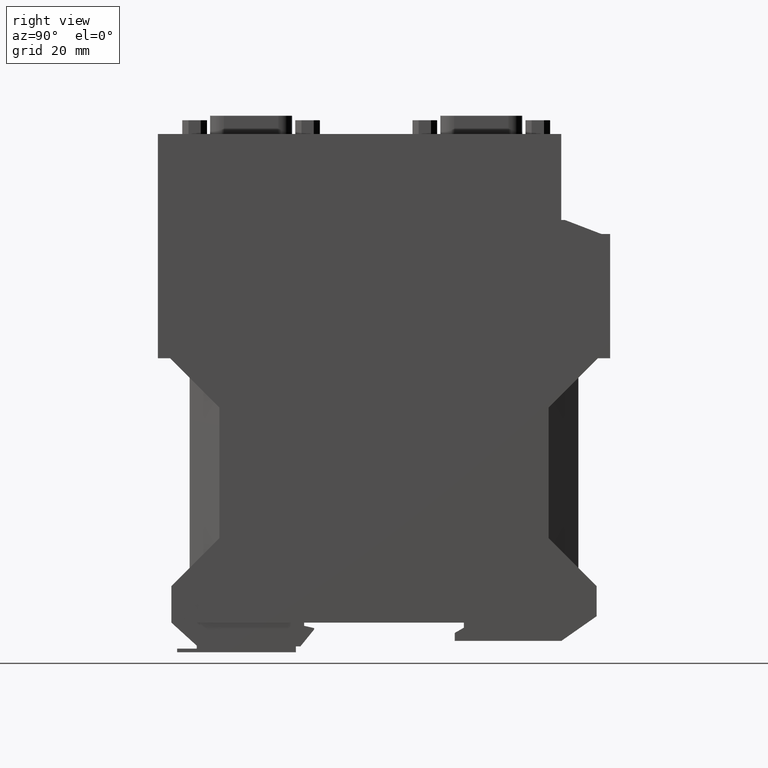
[diagram: clean part render]
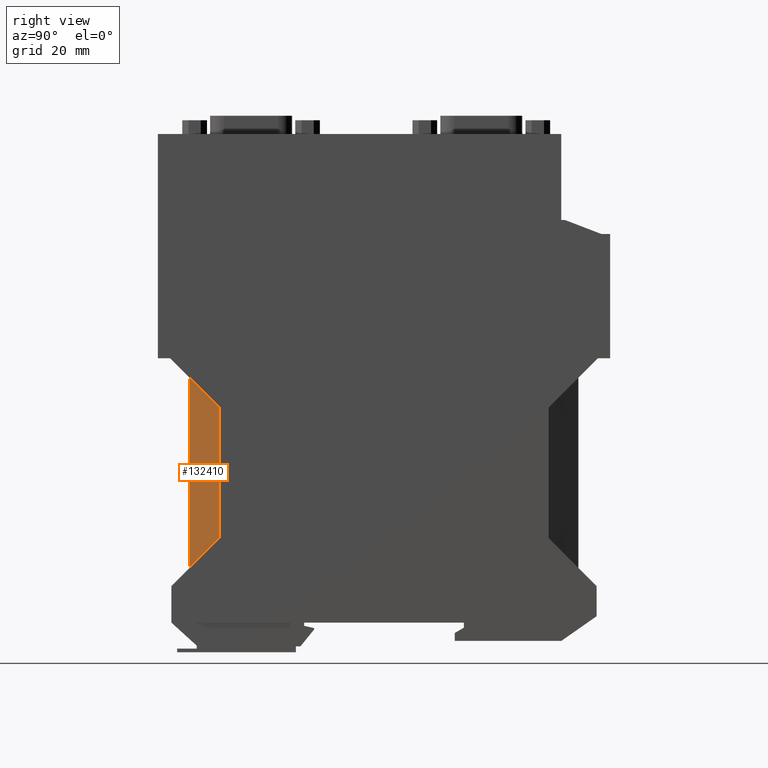
[diagram: same view with one face highlighted and labeled with its STEP entity id]
A machine part, right view. The second image highlights one B-rep face of the part: STEP entity #132410.
In plain terms, the highlighted planar face has unit normal (0.866, -0.5, 0).
Its self-contained STEP definition (entity closure, byte-faithful):
#123320=CARTESIAN_POINT('',(-60.0500000000158,53.600000000015,
30.1472232502651));
#123330=VERTEX_POINT('',#123320);
#123360=CARTESIAN_POINT('',(-60.0500000000057,24.,30.147223250265));
#123370=DIRECTION('',(6.59999999999827E-15,1.,3.81051177665051E-15));
#123380=VECTOR('',#123370,1.);
#123390=LINE('',#123360,#123380);
#123400=CARTESIAN_POINT('',(-60.0500000000161,11.9999999999855,
30.1472232502649));
#123410=VERTEX_POINT('',#123400);
#123420=EDGE_CURVE('',#123410,#123330,#123390,.T.);
#124880=CARTESIAN_POINT('',(-53.5500000000014,18.4999999999989,33.9));
#124890=VERTEX_POINT('',#124880);
#124920=CARTESIAN_POINT('',(-53.5500000000014,24.,33.9));
#124930=DIRECTION('',(0.,-1.,0.));
#124940=VECTOR('',#124930,1.);
#124950=LINE('',#124920,#124940);
#124960=CARTESIAN_POINT('',(-53.5500000000014,47.1000000000007,33.9));
#124970=VERTEX_POINT('',#124960);
#124980=EDGE_CURVE('',#124970,#124890,#124950,.T.);
#131830=CARTESIAN_POINT('',(24.,96.049999999986,78.6735133756561));
#131840=DIRECTION('',(0.654653670708029,0.654653670707909,
0.377964473009255));
#131850=VECTOR('',#131840,1.);
#131860=LINE('',#131830,#131850);
#131870=EDGE_CURVE('',#123410,#124890,#131860,.T.);
#132250=CARTESIAN_POINT('',(-30.7355117766524,53.7000000000005,
47.0719509171741));
#132260=DIRECTION('',(-0.499999999999998,0.,0.86602540378444));
#132270=DIRECTION('',(0.86602540378444,0.,0.499999999999998));
#132280=AXIS2_PLACEMENT_3D('',#132250,#132260,#132270);
#132290=PLANE('',#132280);
#132300=ORIENTED_EDGE('',*,*,#131870,.T.);
#132310=ORIENTED_EDGE('',*,*,#123420,.F.);
#132320=CARTESIAN_POINT('',(24.,-30.45,78.6735133756561));
#132330=DIRECTION('',(-0.65465367070798,0.654653670707974,
-0.377964473009227));
#132340=VECTOR('',#132330,1.);
#132350=LINE('',#132320,#132340);
#132360=EDGE_CURVE('',#124970,#123330,#132350,.T.);
#132370=ORIENTED_EDGE('',*,*,#132360,.T.);
#132380=ORIENTED_EDGE('',*,*,#124980,.F.);
#132390=EDGE_LOOP('',(#132380,#132370,#132310,#132300));
#132400=FACE_OUTER_BOUND('',#132390,.T.);
#132410=ADVANCED_FACE('',(#132400),#132290,.T.);